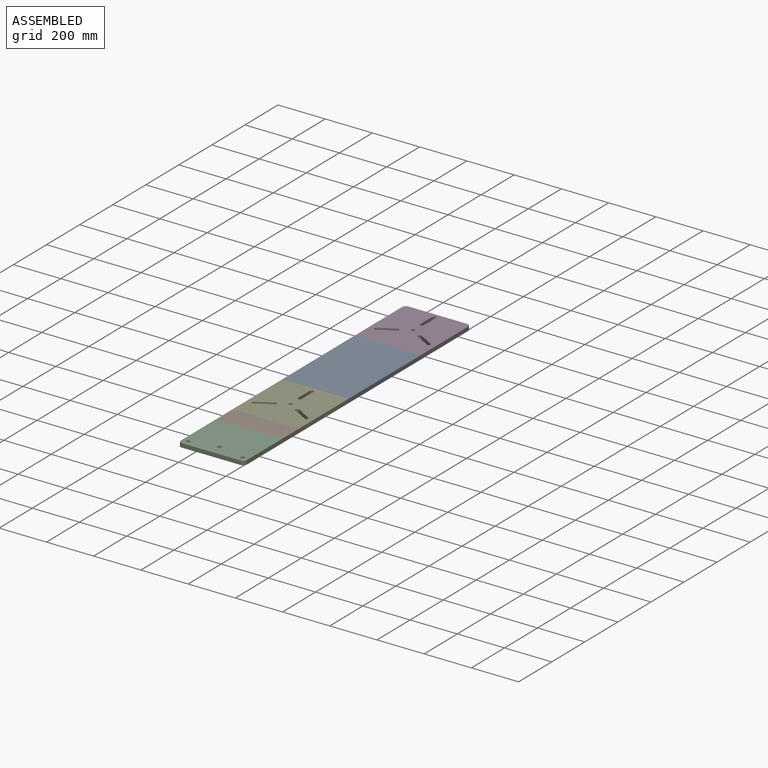
[diagram: assembled view]
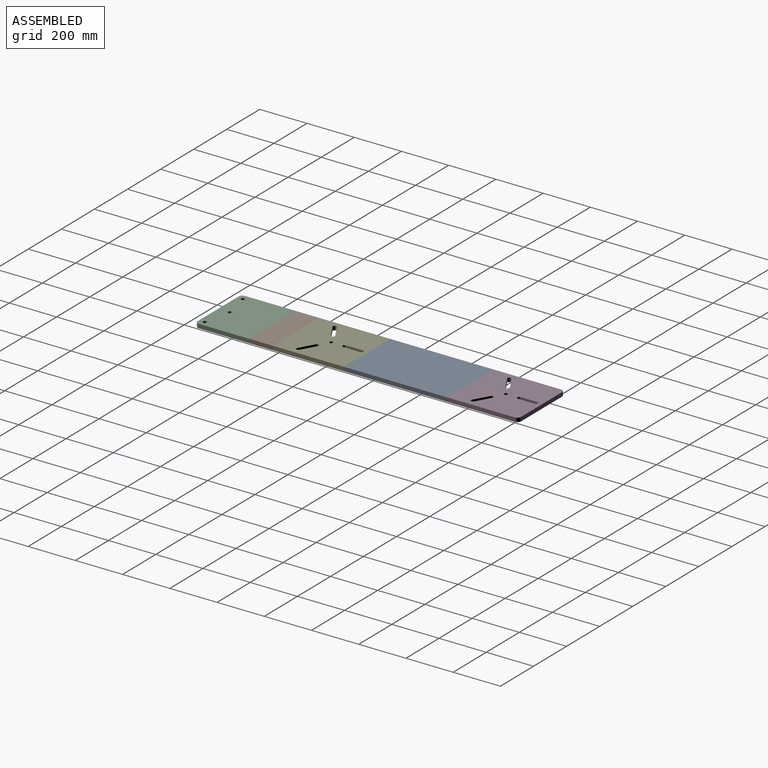
[diagram: assembled view, second angle]
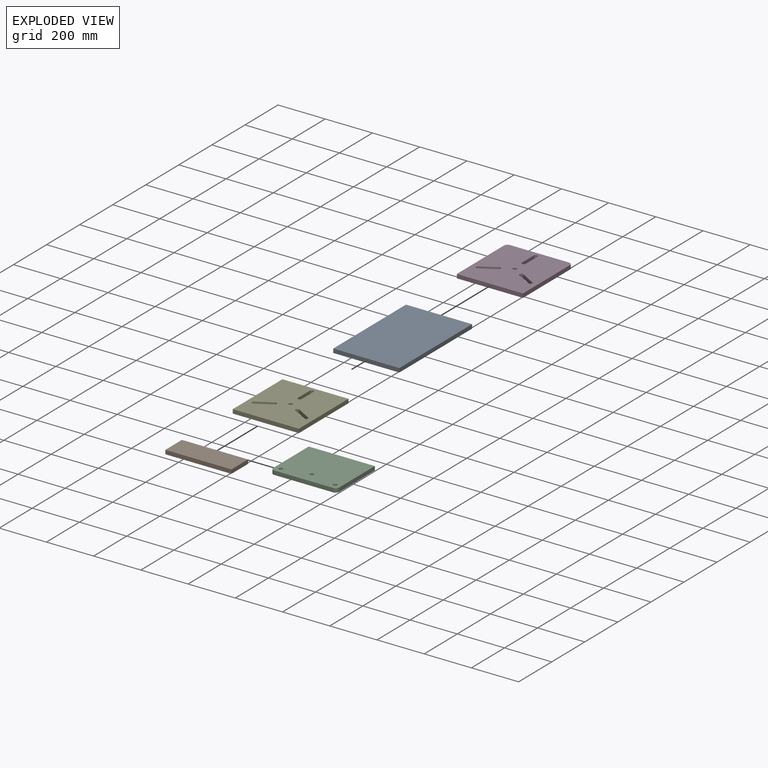
[diagram: exploded view]
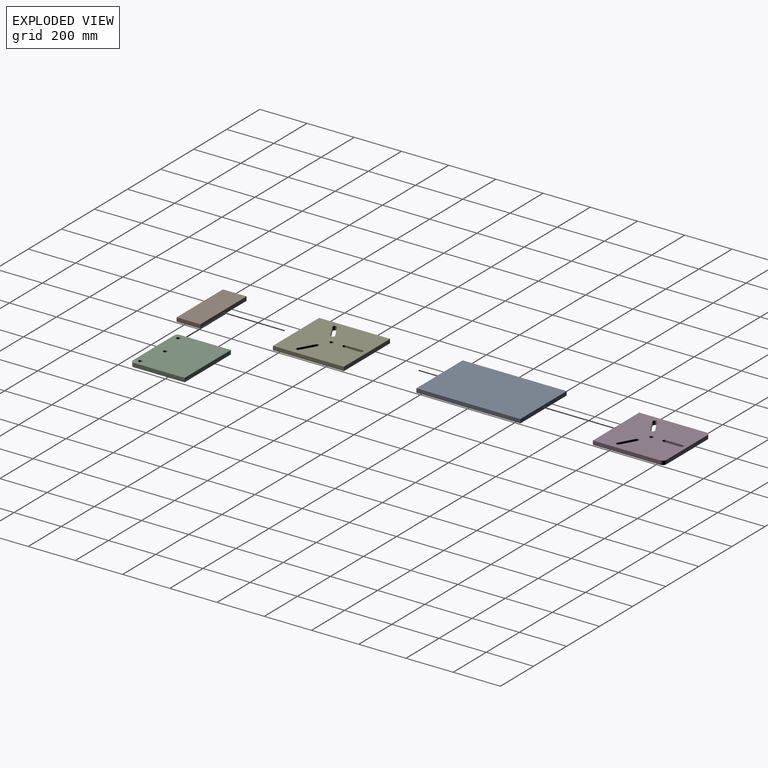
[diagram: exploded view, second angle]
ASSEMBLY  parts=5 mates=3
PART A: 6 faces, bbox 280x440x17 mm
  f0: plane 440x17mm, normal (1,0,0), area 7480mm2, adj f1,f3,f4,f5
  f1: plane 280x17mm, normal (0,1,0), area 4760mm2, adj f0,f2,f4,f5
  f2: plane 440x17mm, normal (-1,0,0), area 7480mm2, adj f1,f3,f4,f5
  f3: plane 280x17mm, normal (0,-1,0), area 4760mm2, adj f0,f2,f4,f5
  f4: plane 440x280mm, normal (0,0,1), area 123200mm2, adj f0,f1,f2,f3
  f5: plane 440x280mm, normal (0,0,-1), area 123200mm2, adj f0,f1,f2,f3
PART B: 6 faces, bbox 280x100x17 mm
  f0: plane 280x17mm, normal (0,1,0), area 4760mm2, adj f1,f3,f4,f5
  f1: plane 100x17mm, normal (-1,0,0), area 1700mm2, adj f0,f2,f4,f5
  f2: plane 280x17mm, normal (0,-1,0), area 4760mm2, adj f1,f3,f4,f5
  f3: plane 100x17mm, normal (1,0,0), area 1700mm2, adj f0,f2,f4,f5
  f4: plane 280x100mm, normal (0,0,-1), area 28000mm2, adj f0,f1,f2,f3
  f5: plane 280x100mm, normal (0,0,1), area 28000mm2, adj f0,f1,f2,f3
PART C: 11 faces, bbox 280x230x17 mm
  f0: plane 214x17mm, normal (1,0,0), area 3638mm2, adj f1,f7,f8,f9
  f1: plane 280x17mm, normal (0,1,0), area 4760mm2, adj f0,f2,f7,f8
  f2: plane 214x17mm, normal (-1,0,0), area 3638mm2, adj f1,f7,f8,f10
  f3: cylinder r=8mm len=17mm, axis (0,0,-1), area 854.5mm2, adj f7,f8
  f4: cylinder r=8mm len=17mm, axis (0,0,-1), area 854.5mm2, adj f7,f8
  f5: plane 248x17mm, normal (0,-1,0), area 4216mm2, adj f7,f8,f9,f10
  f6: cylinder r=8mm len=17mm, axis (0,0,-1), area 854.5mm2, adj f7,f8
  f7: plane 280x230mm, normal (0,0,1), area 63686.9mm2, adj f0,f1,f2,f3,f4,f5,f6,f9
  f8: plane 280x230mm, normal (0,0,-1), area 63686.9mm2, adj f0,f1,f2,f3,f4,f5,f6,f9
  f9: cylinder r=16mm len=17mm, axis (0,0,-1), area 427.3mm2, adj f0,f5,f7,f8
  f10: cylinder r=16mm len=17mm, axis (0,0,1), area 427.3mm2, adj f2,f5,f7,f8
PART D: 21 faces, bbox 280x300x17 mm
  f0: plane 72.5x17mm, normal (1,0,0), area 1232.5mm2, adj f1,f16,f17,f18
  f1: cylinder r=8mm len=17mm, axis (0,0,-1), area 427.3mm2, adj f0,f2,f17,f18
  f2: plane 72.5x17mm, normal (-1,0,0), area 1232.5mm2, adj f1,f16,f17,f18
  f3: plane 62.79x36.25mm, normal (-0.5,0.87,0), area 1232.5mm2, adj f4,f12,f17,f18
  f4: cylinder r=8mm len=17mm, axis (0,0,-1), area 427.3mm2, adj f3,f5,f17,f18
  f5: plane 62.79x36.25mm, normal (0.5,-0.87,0), area 1232.5mm2, adj f4,f12,f17,f18
  f6: plane 62.79x36.25mm, normal (-0.5,-0.87,0), area 1232.5mm2, adj f7,f13,f17,f18
  f7: cylinder r=8mm len=17mm, axis (0,0,-1), area 427.3mm2, adj f6,f8,f17,f18
  f8: plane 62.79x36.25mm, normal (0.5,0.87,0), area 1232.5mm2, adj f7,f13,f17,f18
  f9: plane 284x17mm, normal (1,0,0), area 4828mm2, adj f15,f17,f18,f19
  f10: plane 248x17mm, normal (0,1,0), area 4216mm2, adj f17,f18,f19,f20
  f11: plane 284x17mm, normal (-1,0,0), area 4828mm2, adj f15,f17,f18,f20
  f12: cylinder r=8mm len=17mm, axis (0,0,-1), area 427.3mm2, adj f3,f5,f17,f18
  f13: cylinder r=8mm len=17mm, axis (0,0,-1), area 427.3mm2, adj f6,f8,f17,f18
  f14: cylinder r=8mm len=17mm, axis (0,0,-1), area 854.5mm2, adj f17,f18
  f15: plane 280x17mm, normal (0,-1,0), area 4760mm2, adj f9,f11,f17,f18
  f16: cylinder r=8mm len=17mm, axis (0,0,-1), area 427.3mm2, adj f0,f2,f17,f18
  f17: plane 300x280mm, normal (0,0,1), area 79605.9mm2, adj f0,f1,f2,f3,f4,f5,f6,f7
  f18: plane 300x280mm, normal (0,0,-1), area 79605.9mm2, adj f0,f1,f2,f3,f4,f5,f6,f7
  f19: cylinder r=16mm len=17mm, axis (0,0,1), area 427.3mm2, adj f9,f10,f17,f18
  f20: cylinder r=16mm len=17mm, axis (0,0,-1), area 427.3mm2, adj f10,f11,f17,f18
PART E: 19 faces, bbox 280x300x17 mm
  f0: plane 72.5x17mm, normal (1,0,0), area 1232.5mm2, adj f1,f16,f17,f18
  f1: cylinder r=8mm len=17mm, axis (0,0,-1), area 427.3mm2, adj f0,f2,f17,f18
  f2: plane 72.5x17mm, normal (-1,0,0), area 1232.5mm2, adj f1,f16,f17,f18
  f3: plane 62.79x36.25mm, normal (-0.5,0.87,0), area 1232.5mm2, adj f4,f12,f17,f18
  f4: cylinder r=8mm len=17mm, axis (0,0,-1), area 427.3mm2, adj f3,f5,f17,f18
  f5: plane 62.79x36.25mm, normal (0.5,-0.87,0), area 1232.5mm2, adj f4,f12,f17,f18
  f6: plane 62.79x36.25mm, normal (-0.5,-0.87,0), area 1232.5mm2, adj f7,f13,f17,f18
  f7: cylinder r=8mm len=17mm, axis (0,0,-1), area 427.3mm2, adj f6,f8,f17,f18
  f8: plane 62.79x36.25mm, normal (0.5,0.87,0), area 1232.5mm2, adj f7,f13,f17,f18
  f9: plane 300x17mm, normal (1,0,0), area 5100mm2, adj f10,f15,f17,f18
  f10: plane 280x17mm, normal (0,1,0), area 4760mm2, adj f9,f11,f17,f18
  f11: plane 300x17mm, normal (-1,0,0), area 5100mm2, adj f10,f15,f17,f18
  f12: cylinder r=8mm len=17mm, axis (0,0,-1), area 427.3mm2, adj f3,f5,f17,f18
  f13: cylinder r=8mm len=17mm, axis (0,0,-1), area 427.3mm2, adj f6,f8,f17,f18
  f14: cylinder r=8mm len=17mm, axis (0,0,-1), area 854.5mm2, adj f17,f18
  f15: plane 280x17mm, normal (0,-1,0), area 4760mm2, adj f9,f11,f17,f18
  f16: cylinder r=8mm len=17mm, axis (0,0,-1), area 427.3mm2, adj f0,f2,f17,f18
  f17: plane 300x280mm, normal (0,0,1), area 79715.8mm2, adj f0,f1,f2,f3,f4,f5,f6,f7
  f18: plane 300x280mm, normal (0,0,-1), area 79715.8mm2, adj f0,f1,f2,f3,f4,f5,f6,f7
PLACE A t=(1690.66,717.74,-1462.23)mm
PLACE B t=(1690.66,347.74,-1462.23)mm
PLACE C t=(1690.66,-17.26,-1462.23)mm
PLACE D t=(1690.66,1087.74,-1462.23)mm
PLACE E t=(1690.66,347.74,-1462.23)mm
MATE fastened A.f3 <-> E.f10  axis (0,-1,0) through (1690.66,497.74,-1453.73)mm
MATE fastened D.f15 <-> A.f1  axis (0,-1,0) through (1690.66,937.74,-1453.73)mm
MATE fastened C.f1 <-> B.f2  axis (0,1,0) through (1690.66,97.74,-1453.73)mm
